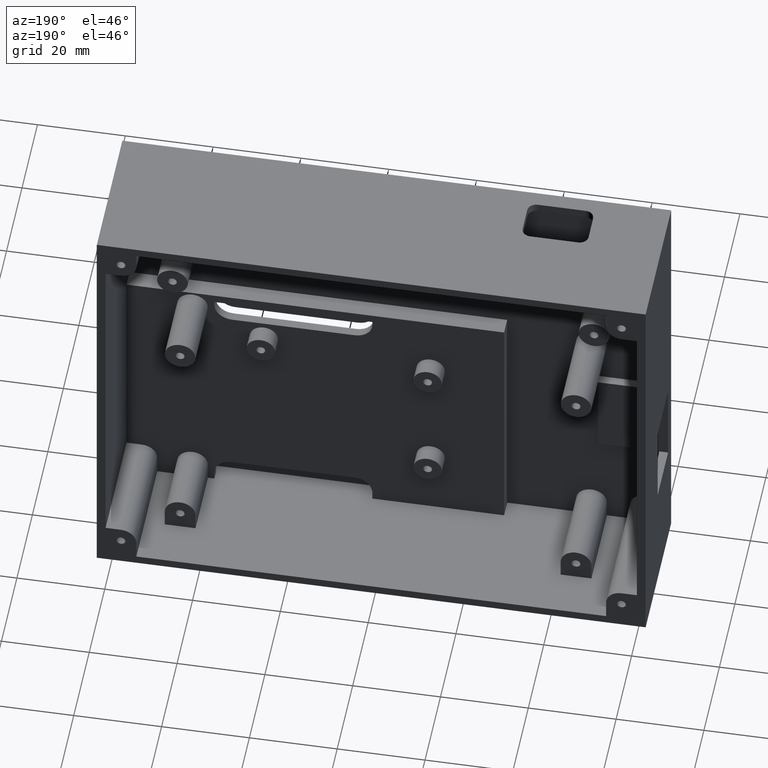
[diagram: clean part render]
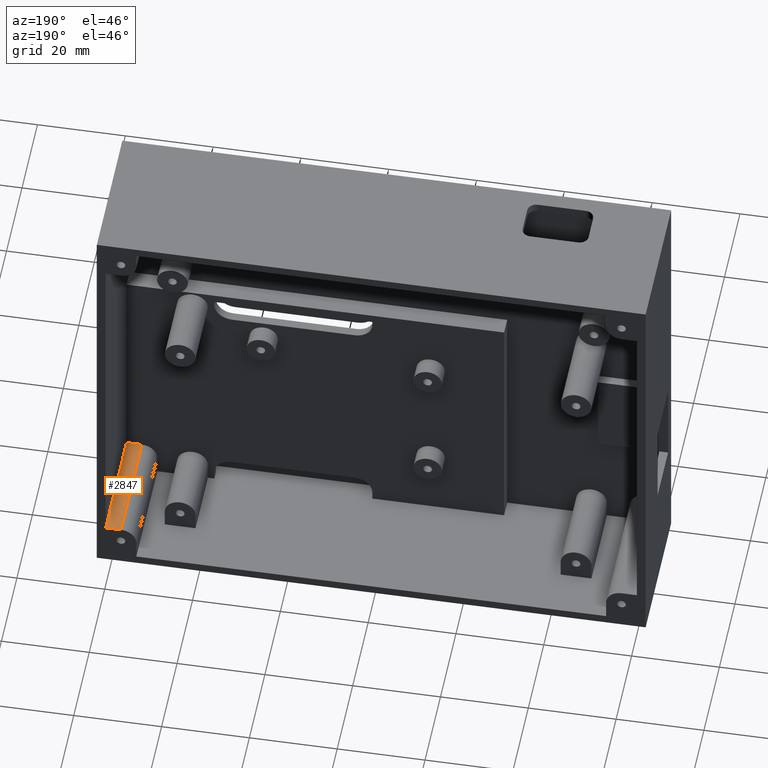
[diagram: same view with one face highlighted and labeled with its STEP entity id]
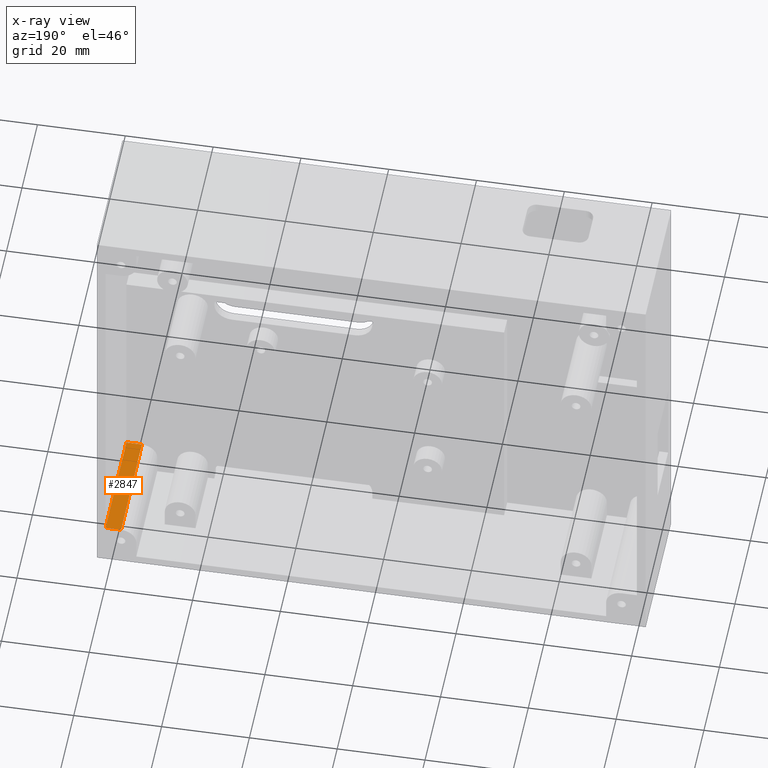
[diagram: x-ray of the same camera — body ghosted, the highlighted face saturated]
A machine part, auxiliary view. The second image highlights one B-rep face of the part: STEP entity #2847.
The next image is the same camera in x-ray: the body ghosted, the highlighted face saturated — about 0% of this face is hidden behind the body in this view.
In plain terms, the highlighted planar face has unit normal (-0, 0, -1).
Its self-contained STEP definition (entity closure, byte-faithful):
#73 = PLANE ( 'NONE',  #2151 ) ;
#235 = EDGE_CURVE ( 'NONE', #1819, #1406, #2988, .T. ) ;
#334 = DIRECTION ( 'NONE',  ( -0.0000000000000000000, -1.000000000000000000, -0.0000000000000000000 ) ) ;
#335 = CARTESIAN_POINT ( 'NONE',  ( 41.02967359050448700, 33.00000000000000000, -34.25222551928782600 ) ) ;
#340 = DIRECTION ( 'NONE',  ( -0.0000000000000000000, -1.000000000000000000, -0.0000000000000000000 ) ) ;
#437 = CARTESIAN_POINT ( 'NONE',  ( 37.52967359050448700, 5.999999999999998200, -34.25222551928781900 ) ) ;
#774 = LINE ( 'NONE', #3408, #1041 ) ;
#860 = LINE ( 'NONE', #2414, #3856 ) ;
#959 = VERTEX_POINT ( 'NONE', #437 ) ;
#1041 = VECTOR ( 'NONE', #1652, 1000.000000000000000 ) ;
#1406 = VERTEX_POINT ( 'NONE', #3508 ) ;
#1458 = ORIENTED_EDGE ( 'NONE', *, *, #235, .F. ) ;
#1490 = EDGE_LOOP ( 'NONE', ( #1854, #4228, #2235, #1458 ) ) ;
#1510 = VECTOR ( 'NONE', #2340, 1000.000000000000000 ) ;
#1635 = VECTOR ( 'NONE', #340, 1000.000000000000000 ) ;
#1652 = DIRECTION ( 'NONE',  ( 1.000000000000000000, -0.0000000000000000000, -1.982541115402063700E-015 ) ) ;
#1819 = VERTEX_POINT ( 'NONE', #335 ) ;
#1832 = FACE_OUTER_BOUND ( 'NONE', #1490, .T. ) ;
#1854 = ORIENTED_EDGE ( 'NONE', *, *, #1946, .F. ) ;
#1946 = EDGE_CURVE ( 'NONE', #2904, #1819, #2087, .T. ) ;
#2087 = LINE ( 'NONE', #2323, #1510 ) ;
#2151 = AXIS2_PLACEMENT_3D ( 'NONE', #3216, #2166, #3516 ) ;
#2166 = DIRECTION ( 'NONE',  ( -1.982541115402063700E-015, 0.0000000000000000000, -1.000000000000000000 ) ) ;
#2235 = ORIENTED_EDGE ( 'NONE', *, *, #4152, .T. ) ;
#2323 = CARTESIAN_POINT ( 'NONE',  ( 41.02967359050448700, 33.00000000000000000, -34.25222551928782600 ) ) ;
#2340 = DIRECTION ( 'NONE',  ( 1.000000000000000000, 0.0000000000000000000, -1.982541115402063700E-015 ) ) ;
#2414 = CARTESIAN_POINT ( 'NONE',  ( 37.52967359050448700, 42.89949493661167400, -34.25222551928781900 ) ) ;
#2847 = ADVANCED_FACE ( 'NONE', ( #1832 ), #73, .F. ) ;
#2904 = VERTEX_POINT ( 'NONE', #3234 ) ;
#2988 = LINE ( 'NONE', #3746, #1635 ) ;
#3216 = CARTESIAN_POINT ( 'NONE',  ( 41.02967359050448700, 42.89949493661167400, -34.25222551928782600 ) ) ;
#3234 = CARTESIAN_POINT ( 'NONE',  ( 37.52967359050448700, 33.00000000000000000, -34.25222551928781900 ) ) ;
#3408 = CARTESIAN_POINT ( 'NONE',  ( 41.02967359050448700, 6.000000000000000000, -34.25222551928782600 ) ) ;
#3508 = CARTESIAN_POINT ( 'NONE',  ( 41.02967359050448000, 6.000000000000000000, -34.25222551928782600 ) ) ;
#3516 = DIRECTION ( 'NONE',  ( -1.000000000000000000, 0.0000000000000000000, 1.982541115402063700E-015 ) ) ;
#3746 = CARTESIAN_POINT ( 'NONE',  ( 41.02967359050448700, 42.89949493661167400, -34.25222551928782600 ) ) ;
#3834 = EDGE_CURVE ( 'NONE', #2904, #959, #860, .T. ) ;
#3856 = VECTOR ( 'NONE', #334, 1000.000000000000000 ) ;
#4152 = EDGE_CURVE ( 'NONE', #959, #1406, #774, .T. ) ;
#4228 = ORIENTED_EDGE ( 'NONE', *, *, #3834, .T. ) ;